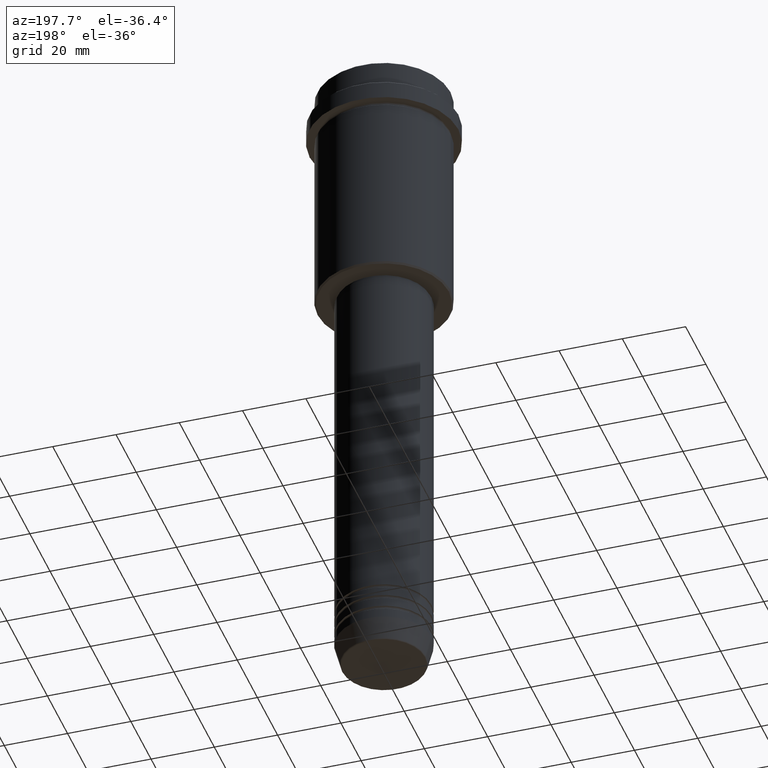
[diagram: clean part render]
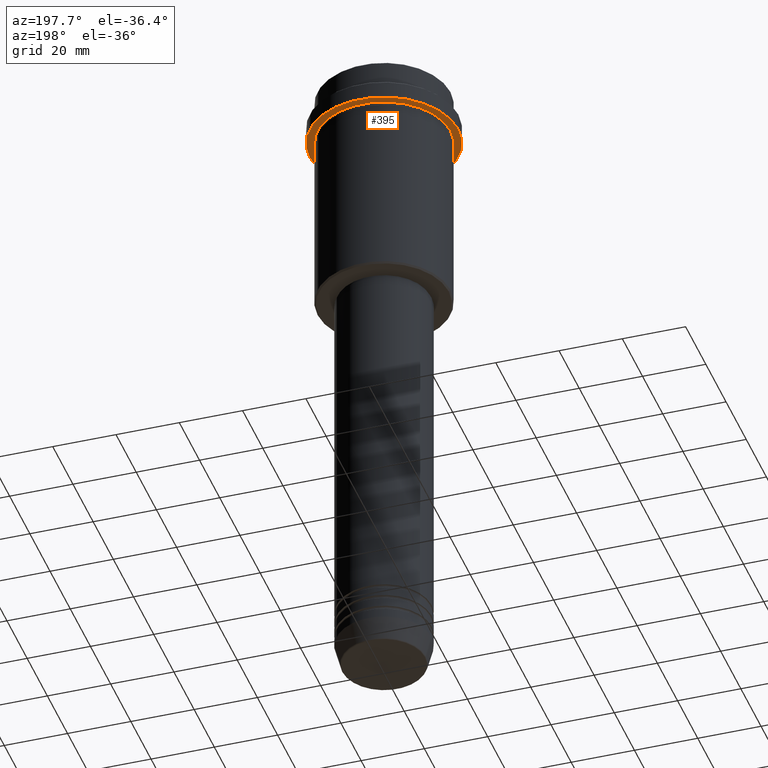
[diagram: same view with one face highlighted and labeled with its STEP entity id]
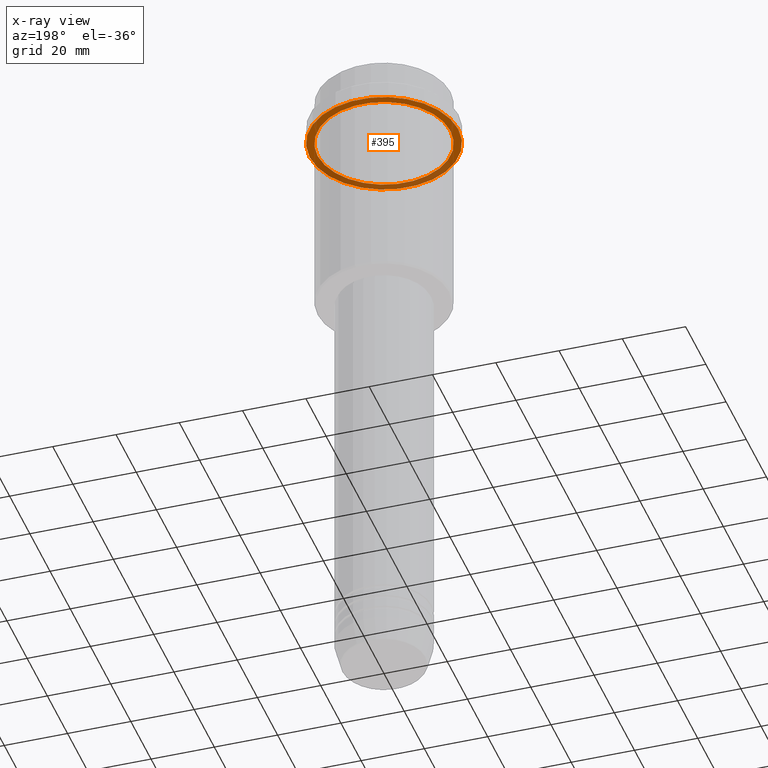
[diagram: x-ray of the same camera — body ghosted, the highlighted face saturated]
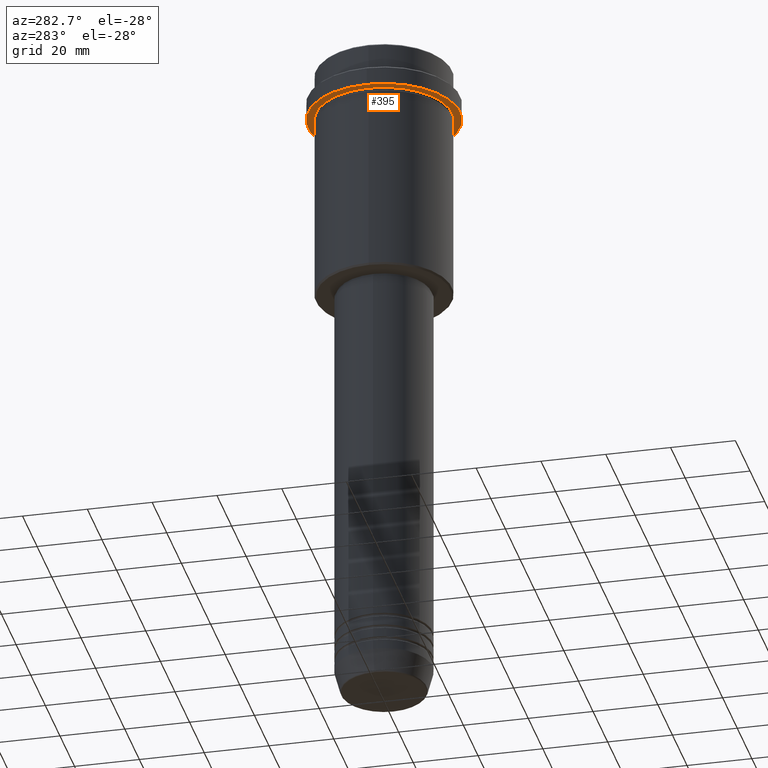
[diagram: same view with one face highlighted and labeled with its STEP entity id]
A machine part, auxiliary view. The second image highlights one B-rep face of the part: STEP entity #395.
The next image is the same camera in x-ray: the body ghosted, the highlighted face saturated — about 35% of this face is hidden behind the body in this view.
A second angle (auxiliary view) of the same face is appended — the face is thin or edge-on in the first view.
In plain terms, the highlighted planar face has unit normal (0, 0, -1).
Its self-contained STEP definition (entity closure, byte-faithful):
#50 = EDGE_LOOP ( 'NONE', ( #995, #1249 ) ) ;
#160 = CARTESIAN_POINT ( 'NONE',  ( -20.99999999999999289, 0.000000000000000000, -15.00000000000000178 ) ) ;
#177 = AXIS2_PLACEMENT_3D ( 'NONE', #414, #533, #985 ) ;
#269 = DIRECTION ( 'NONE',  ( -1.000000000000000000, 0.000000000000000000, -0.000000000000000000 ) ) ;
#277 = VERTEX_POINT ( 'NONE', #1004 ) ;
#340 = CARTESIAN_POINT ( 'NONE',  ( 0.000000000000000000, 0.000000000000000000, -15.00000000000000000 ) ) ;
#395 = ADVANCED_FACE ( 'NONE', ( #472, #1345 ), #818, .T. ) ;
#414 = CARTESIAN_POINT ( 'NONE',  ( 0.000000000000000000, 0.000000000000000000, -15.00000000000000178 ) ) ;
#417 = CARTESIAN_POINT ( 'NONE',  ( 23.50000000000000355, 0.000000000000000000, -15.00000000000000000 ) ) ;
#419 = CARTESIAN_POINT ( 'NONE',  ( 20.99999999999999289, 2.571758278209440872E-15, -15.00000000000000178 ) ) ;
#471 = EDGE_CURVE ( 'NONE', #277, #1392, #1180, .T. ) ;
#472 = FACE_BOUND ( 'NONE', #740, .T. ) ;
#516 = AXIS2_PLACEMENT_3D ( 'NONE', #595, #712, #1033 ) ;
#533 = DIRECTION ( 'NONE',  ( -0.000000000000000000, -0.000000000000000000, 1.000000000000000000 ) ) ;
#591 = ORIENTED_EDGE ( 'NONE', *, *, #1030, .T. ) ;
#595 = CARTESIAN_POINT ( 'NONE',  ( 0.000000000000000000, 0.000000000000000000, -15.00000000000000178 ) ) ;
#605 = CARTESIAN_POINT ( 'NONE',  ( 0.000000000000000000, 0.000000000000000000, -15.00000000000000000 ) ) ;
#663 = CIRCLE ( 'NONE', #1034, 23.50000000000000355 ) ;
#712 = DIRECTION ( 'NONE',  ( -0.000000000000000000, -0.000000000000000000, 1.000000000000000000 ) ) ;
#715 = CARTESIAN_POINT ( 'NONE',  ( 0.000000000000000000, 23.50000000000000355, -15.00000000000000178 ) ) ;
#740 = EDGE_LOOP ( 'NONE', ( #591, #862 ) ) ;
#751 = AXIS2_PLACEMENT_3D ( 'NONE', #605, #1141, #1049 ) ;
#770 = DIRECTION ( 'NONE',  ( 1.000000000000000000, 0.000000000000000000, 0.000000000000000000 ) ) ;
#818 = PLANE ( 'NONE',  #1359 ) ;
#862 = ORIENTED_EDGE ( 'NONE', *, *, #1333, .T. ) ;
#924 = DIRECTION ( 'NONE',  ( -0.000000000000000000, -0.000000000000000000, 1.000000000000000000 ) ) ;
#938 = DIRECTION ( 'NONE',  ( 0.000000000000000000, 0.000000000000000000, -1.000000000000000000 ) ) ;
#966 = VERTEX_POINT ( 'NONE', #419 ) ;
#985 = DIRECTION ( 'NONE',  ( -1.000000000000000000, 0.000000000000000000, 0.000000000000000000 ) ) ;
#995 = ORIENTED_EDGE ( 'NONE', *, *, #1212, .F. ) ;
#1004 = CARTESIAN_POINT ( 'NONE',  ( -23.50000000000000711, 2.877919977996281109E-15, -15.00000000000000000 ) ) ;
#1012 = CIRCLE ( 'NONE', #516, 20.99999999999999289 ) ;
#1030 = EDGE_CURVE ( 'NONE', #1321, #966, #1362, .T. ) ;
#1033 = DIRECTION ( 'NONE',  ( -1.000000000000000000, 0.000000000000000000, 0.000000000000000000 ) ) ;
#1034 = AXIS2_PLACEMENT_3D ( 'NONE', #340, #924, #770 ) ;
#1049 = DIRECTION ( 'NONE',  ( 1.000000000000000000, 0.000000000000000000, 0.000000000000000000 ) ) ;
#1141 = DIRECTION ( 'NONE',  ( -0.000000000000000000, -0.000000000000000000, 1.000000000000000000 ) ) ;
#1180 = CIRCLE ( 'NONE', #751, 23.50000000000000355 ) ;
#1212 = EDGE_CURVE ( 'NONE', #1392, #277, #663, .T. ) ;
#1249 = ORIENTED_EDGE ( 'NONE', *, *, #471, .F. ) ;
#1321 = VERTEX_POINT ( 'NONE', #160 ) ;
#1333 = EDGE_CURVE ( 'NONE', #966, #1321, #1012, .T. ) ;
#1345 = FACE_OUTER_BOUND ( 'NONE', #50, .T. ) ;
#1359 = AXIS2_PLACEMENT_3D ( 'NONE', #715, #938, #269 ) ;
#1362 = CIRCLE ( 'NONE', #177, 20.99999999999999289 ) ;
#1392 = VERTEX_POINT ( 'NONE', #417 ) ;